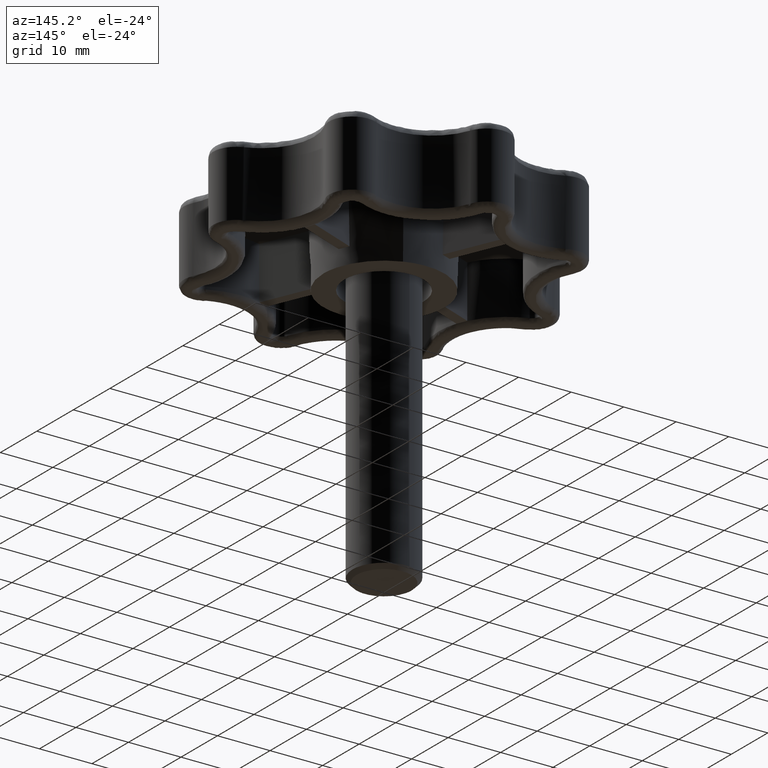
[diagram: clean part render]
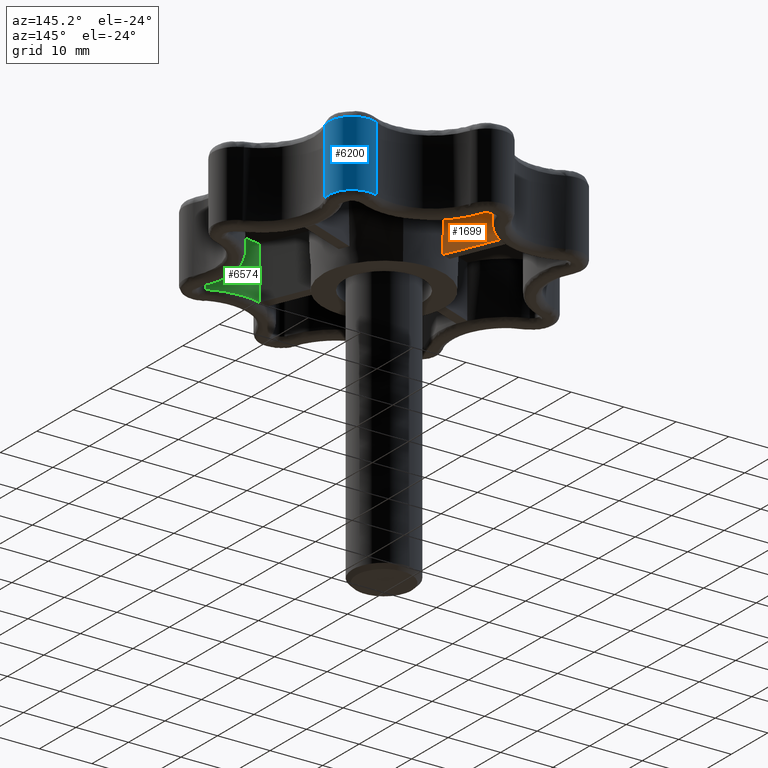
[diagram: same view with three faces highlighted in distinct colors, each labeled with its STEP entity id]
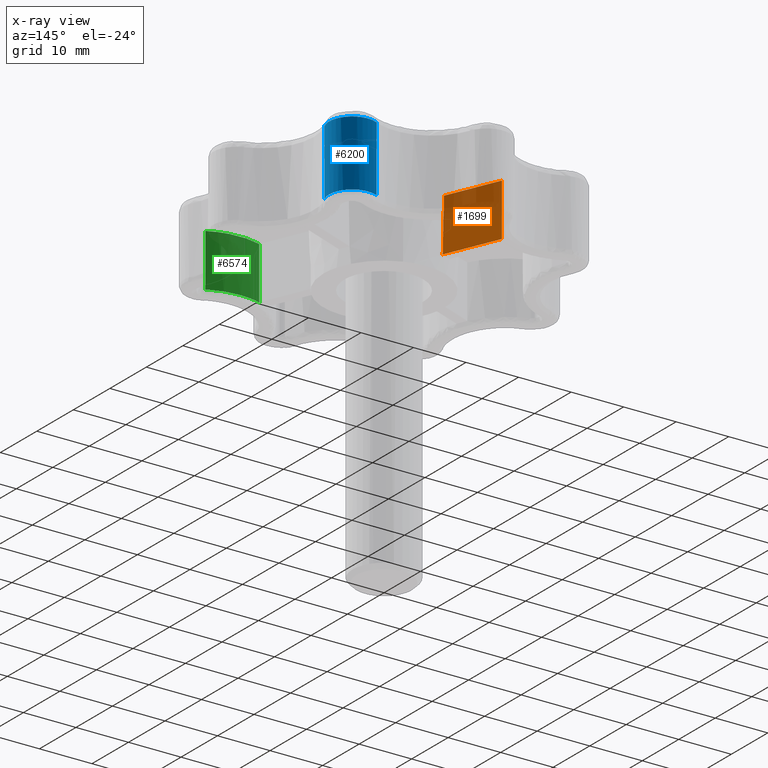
[diagram: x-ray of the same camera — body ghosted, the three highlighted faces saturated]
A machine part, auxiliary view with three faces highlighted in distinct colors.
The next image is the same camera in x-ray (body ghosted, the three faces saturated) — at least one of them is partly hidden behind the body in this view.
Their STEP definitions:

[orange] entity #1699 — the highlighted face is a freeform B-spline surface patch.
#1150=CARTESIAN_POINT('',(-3.490486068264025,11.039905245006000,3.0));
#1151=VERTEX_POINT('',#1150);
#1165=CARTESIAN_POINT('',(-3.591062353553760,11.282717688093820,13.0));
#1166=VERTEX_POINT('',#1165);
#1167=CARTESIAN_POINT('',(-3.591062353553766,11.282717688093831,13.0));
#1168=CARTESIAN_POINT('',(-3.557539647007382,11.201786778267570,9.666666479741581));
#1169=CARTESIAN_POINT('',(-3.524014280591966,11.120849446954420,6.333333142133698));
#1170=CARTESIAN_POINT('',(-3.490486068264031,11.039905245006000,3.000000000000001));
#1171=B_SPLINE_CURVE_WITH_KNOTS('',3,(#1167,#1168,#1169,#1170),.UNSPECIFIED.,.F.,.U.,(4,4),(0.000000200069050,0.010003653146447),.UNSPECIFIED.);
#1172=EDGE_CURVE('',#1166,#1151,#1171,.T.);
#1633=CARTESIAN_POINT('',(-7.701241000000000,21.205559000000001,3.0));
#1634=VERTEX_POINT('',#1633);
#1648=CARTESIAN_POINT('',(-3.490486068264025,11.039905245006000,3.0));
#1649=CARTESIAN_POINT('',(-7.701241000000000,21.205559000000001,3.0));
#1650=QUASI_UNIFORM_CURVE('',1,(#1648,#1649),.UNSPECIFIED.,.F.,.U.);
#1651=EDGE_CURVE('',#1151,#1634,#1650,.T.);
#1678=CARTESIAN_POINT('',(-7.911568106580085,21.713333158184309,2.500500019381941));
#1679=CARTESIAN_POINT('',(-3.280159074625209,10.532131359485771,2.500500019381941));
#1680=CARTESIAN_POINT('',(-7.911568106580085,21.713333158184309,13.499500248838970));
#1681=CARTESIAN_POINT('',(-3.280159074625209,10.532131359485771,13.499500248838970));
#1682=B_SPLINE_SURFACE_WITH_KNOTS('',1,1,((#1678,#1680),(#1679,#1681)),.UNSPECIFIED.,.F.,.F.,.U.,(2,2),(2,2),(0.0,12.102446995731590),(0.0,10.999000229457030),.UNSPECIFIED.);
#1683=CARTESIAN_POINT('',(-7.701240205003630,21.205557080710449,13.0));
#1684=VERTEX_POINT('',#1683);
#1685=CARTESIAN_POINT('',(-3.591062353553760,11.282717688093820,13.0));
#1686=CARTESIAN_POINT('',(-7.701240205003630,21.205557080710449,13.0));
#1687=QUASI_UNIFORM_CURVE('',1,(#1685,#1686),.UNSPECIFIED.,.F.,.U.);
#1688=EDGE_CURVE('',#1166,#1684,#1687,.T.);
#1689=ORIENTED_EDGE('',*,*,#1688,.F.);
#1690=ORIENTED_EDGE('',*,*,#1172,.T.);
#1691=ORIENTED_EDGE('',*,*,#1651,.T.);
#1692=CARTESIAN_POINT('',(-7.701240205003630,21.205557080710449,13.0));
#1693=CARTESIAN_POINT('',(-7.701241000000000,21.205559000000001,3.0));
#1694=QUASI_UNIFORM_CURVE('',1,(#1692,#1693),.UNSPECIFIED.,.F.,.U.);
#1695=EDGE_CURVE('',#1684,#1634,#1694,.T.);
#1696=ORIENTED_EDGE('',*,*,#1695,.F.);
#1697=EDGE_LOOP('',(#1689,#1690,#1691,#1696));
#1698=FACE_OUTER_BOUND('',#1697,.T.);
#1699=ADVANCED_FACE('',(#1698),#1682,.F.);

[blue] entity #6200 — the highlighted face is a freeform B-spline surface patch.
#1959=CARTESIAN_POINT('',(23.814922461621951,17.979494134616449,3.0));
#1960=VERTEX_POINT('',#1959);
#2107=CARTESIAN_POINT('',(17.979489243975198,23.814919999818098,3.0));
#2108=VERTEX_POINT('',#2107);
#2122=CARTESIAN_POINT('',(23.814922461621968,17.979494134616441,3.0));
#2123=CARTESIAN_POINT('',(25.183917002701200,20.778028815726785,3.000000000000000));
#2124=CARTESIAN_POINT('',(22.980969591109620,22.980973462476690,3.0));
#2125=CARTESIAN_POINT('',(20.778022179518050,25.183918109226607,3.000000000000000));
#2126=CARTESIAN_POINT('',(17.979489243975198,23.814919999818098,3.0));
#2134=(BOUNDED_CURVE()B_SPLINE_CURVE(2,(#2122,#2123,#2124,#2125,#2126),.UNSPECIFIED.,.F.,.U.)B_SPLINE_CURVE_WITH_KNOTS((3,2,3),(0.0,0.500000000000000,1.0),.UNSPECIFIED.)CURVE()GEOMETRIC_REPRESENTATION_ITEM()RATIONAL_B_SPLINE_CURVE((1.0,0.813775277859690,1.0,0.813775277859690,1.0))REPRESENTATION_ITEM(''));
#2135=EDGE_CURVE('',#1960,#2108,#2134,.T.);
#4795=CARTESIAN_POINT('',(17.979489243975198,23.814919999818098,15.500000000000000));
#4796=VERTEX_POINT('',#4795);
#4939=CARTESIAN_POINT('',(23.814922461621951,17.979494134616449,15.500000000000000));
#4940=VERTEX_POINT('',#4939);
#4954=CARTESIAN_POINT('',(17.979489243975198,23.814919999818098,15.500000000000000));
#4955=CARTESIAN_POINT('',(20.778022179518047,25.183918109226603,15.500000000000004));
#4956=CARTESIAN_POINT('',(22.980969591109620,22.980973462476690,15.500000000000000));
#4957=CARTESIAN_POINT('',(25.183917002701197,20.778028815726781,15.500000000000004));
#4958=CARTESIAN_POINT('',(23.814922461621968,17.979494134616441,15.500000000000000));
#4966=(BOUNDED_CURVE()B_SPLINE_CURVE(2,(#4954,#4955,#4956,#4957,#4958),.UNSPECIFIED.,.F.,.U.)B_SPLINE_CURVE_WITH_KNOTS((3,2,3),(0.0,0.500000000000000,1.0),.UNSPECIFIED.)CURVE()GEOMETRIC_REPRESENTATION_ITEM()RATIONAL_B_SPLINE_CURVE((1.0,0.813775277859690,1.0,0.813775277859690,1.0))REPRESENTATION_ITEM(''));
#4967=EDGE_CURVE('',#4796,#4940,#4966,.T.);
#5970=CARTESIAN_POINT('',(17.979489243975198,23.814919999818098,15.500000000000000));
#5971=CARTESIAN_POINT('',(17.979489243975198,23.814919999818098,3.0));
#5972=QUASI_UNIFORM_CURVE('',1,(#5970,#5971),.UNSPECIFIED.,.F.,.U.);
#5973=EDGE_CURVE('',#4796,#2108,#5972,.T.);
#6005=CARTESIAN_POINT('',(23.814922461621951,17.979494134616449,15.500000000000000));
#6006=CARTESIAN_POINT('',(23.814922461621951,17.979494134616449,3.0));
#6007=QUASI_UNIFORM_CURVE('',1,(#6005,#6006),.UNSPECIFIED.,.F.,.U.);
#6008=EDGE_CURVE('',#4940,#1960,#6007,.T.);
#6176=CARTESIAN_POINT('',(23.763401504446449,17.877575467027881,15.812500000000000));
#6177=CARTESIAN_POINT('',(23.763401504446449,17.877575467027881,2.679687500000000));
#6178=CARTESIAN_POINT('',(25.270912857328216,20.765218879200184,15.812500000000004));
#6179=CARTESIAN_POINT('',(25.270912857328216,20.765218879200184,2.679687500000001));
#6180=CARTESIAN_POINT('',(22.930339723009091,23.030785553971189,15.812500000000000));
#6181=CARTESIAN_POINT('',(22.930339723009091,23.030785553971189,2.679687500000000));
#6182=CARTESIAN_POINT('',(20.589766588689955,25.296352228742215,15.812500000000004));
#6183=CARTESIAN_POINT('',(20.589766588689955,25.296352228742215,2.679687500000001));
#6184=CARTESIAN_POINT('',(17.752737864711410,23.695620216739542,15.812500000000000));
#6185=CARTESIAN_POINT('',(17.752737864711410,23.695620216739542,2.679687500000000));
#6193=(BOUNDED_SURFACE()B_SPLINE_SURFACE(1,2,((#6176,#6178,#6180,#6182,#6184),(#6177,#6179,#6181,#6183,#6185)),.UNSPECIFIED.,.F.,.F.,.U.)B_SPLINE_SURFACE_WITH_KNOTS((2,2),(3,2,3),(0.0,13.132812500000000),(0.0,5.796086770759673,11.592173541519349),.UNSPECIFIED.)GEOMETRIC_REPRESENTATION_ITEM()RATIONAL_B_SPLINE_SURFACE(((1.0,0.801253812691061,1.0,0.801253812691061,1.0),(1.0,0.801253812691061,1.0,0.801253812691061,1.0)))REPRESENTATION_ITEM('')SURFACE());
#6194=ORIENTED_EDGE('',*,*,#6008,.T.);
#6195=ORIENTED_EDGE('',*,*,#2135,.T.);
#6196=ORIENTED_EDGE('',*,*,#5973,.F.);
#6197=ORIENTED_EDGE('',*,*,#4967,.T.);
#6198=EDGE_LOOP('',(#6194,#6195,#6196,#6197));
#6199=FACE_OUTER_BOUND('',#6198,.T.);
#6200=ADVANCED_FACE('',(#6199),#6193,.T.);

[green] entity #6574 — the highlighted face is a freeform B-spline surface patch.
#1466=CARTESIAN_POINT('',(9.548995024482650,-20.440190644892400,3.0));
#1467=VERTEX_POINT('',#1466);
#1503=CARTESIAN_POINT('',(9.548995024480581,-20.440190644893050,13.0));
#1504=VERTEX_POINT('',#1503);
#1510=CARTESIAN_POINT('',(9.548995024480581,-20.440190644893050,13.0));
#1511=CARTESIAN_POINT('',(9.548995024482650,-20.440190644892400,3.0));
#1512=QUASI_UNIFORM_CURVE('',1,(#1510,#1511),.UNSPECIFIED.,.F.,.U.);
#1513=EDGE_CURVE('',#1504,#1467,#1512,.T.);
#3399=CARTESIAN_POINT('',(19.297763195846201,-21.120081708960502,3.0));
#3400=VERTEX_POINT('',#3399);
#3446=CARTESIAN_POINT('',(19.297763195846201,-21.120081708960502,3.0));
#3447=CARTESIAN_POINT('',(14.561262470820520,-18.803065159575890,3.0));
#3448=CARTESIAN_POINT('',(9.548995024482647,-20.440190644892379,3.0));
#3456=(BOUNDED_CURVE()B_SPLINE_CURVE(2,(#3446,#3447,#3448),.UNSPECIFIED.,.F.,.U.)CURVE()GEOMETRIC_REPRESENTATION_ITEM()QUASI_UNIFORM_CURVE()RATIONAL_B_SPLINE_CURVE((1.0,0.926675091966547,1.0))REPRESENTATION_ITEM(''));
#3457=EDGE_CURVE('',#3400,#1467,#3456,.T.);
#5844=CARTESIAN_POINT('',(19.297763195846201,-21.120081708960502,13.0));
#5845=VERTEX_POINT('',#5844);
#5846=CARTESIAN_POINT('',(19.297763195846201,-21.120081708960502,13.0));
#5847=CARTESIAN_POINT('',(19.297763195846201,-21.120081708960502,3.0));
#5848=QUASI_UNIFORM_CURVE('',1,(#5846,#5847),.UNSPECIFIED.,.F.,.U.);
#5849=EDGE_CURVE('',#5845,#3400,#5848,.T.);
#6542=CARTESIAN_POINT('',(19.728853595207269,-21.341010728323930,13.250000000000004));
#6543=CARTESIAN_POINT('',(19.728853595207269,-21.341010728323930,2.743749999999999));
#6544=CARTESIAN_POINT('',(14.574958822069481,-18.577264267793737,13.250000000000004));
#6545=CARTESIAN_POINT('',(14.574958822069481,-18.577264267793737,2.743749999999999));
#6546=CARTESIAN_POINT('',(9.087909224249859,-20.600433203334621,13.250000000000000));
#6547=CARTESIAN_POINT('',(9.087909224249859,-20.600433203334621,2.743749999999999));
#6555=(BOUNDED_SURFACE()B_SPLINE_SURFACE(1,2,((#6542,#6544,#6546),(#6543,#6545,#6547)),.UNSPECIFIED.,.F.,.F.,.U.)B_SPLINE_SURFACE_WITH_KNOTS((2,2),(3,3),(0.0,10.506250000000000),(0.0,11.157748236778740),.UNSPECIFIED.)GEOMETRIC_REPRESENTATION_ITEM()RATIONAL_B_SPLINE_SURFACE(((0.999176263656581,0.907576328777116,0.991204328007387),(0.999176263656581,0.907576328777116,0.991204328007387)))REPRESENTATION_ITEM('')SURFACE());
#6556=ORIENTED_EDGE('',*,*,#3457,.T.);
#6557=ORIENTED_EDGE('',*,*,#1513,.F.);
#6558=CARTESIAN_POINT('',(9.548995024480579,-20.440190644893061,13.0));
#6559=CARTESIAN_POINT('',(14.561262470819369,-18.803065159575336,12.999999999999998));
#6560=CARTESIAN_POINT('',(19.297763195846201,-21.120081708960502,13.0));
#6568=(BOUNDED_CURVE()B_SPLINE_CURVE(2,(#6558,#6559,#6560),.UNSPECIFIED.,.F.,.U.)CURVE()GEOMETRIC_REPRESENTATION_ITEM()QUASI_UNIFORM_CURVE()RATIONAL_B_SPLINE_CURVE((1.0,0.926675091966516,1.0))REPRESENTATION_ITEM(''));
#6569=EDGE_CURVE('',#1504,#5845,#6568,.T.);
#6570=ORIENTED_EDGE('',*,*,#6569,.T.);
#6571=ORIENTED_EDGE('',*,*,#5849,.T.);
#6572=EDGE_LOOP('',(#6556,#6557,#6570,#6571));
#6573=FACE_OUTER_BOUND('',#6572,.T.);
#6574=ADVANCED_FACE('',(#6573),#6555,.T.);